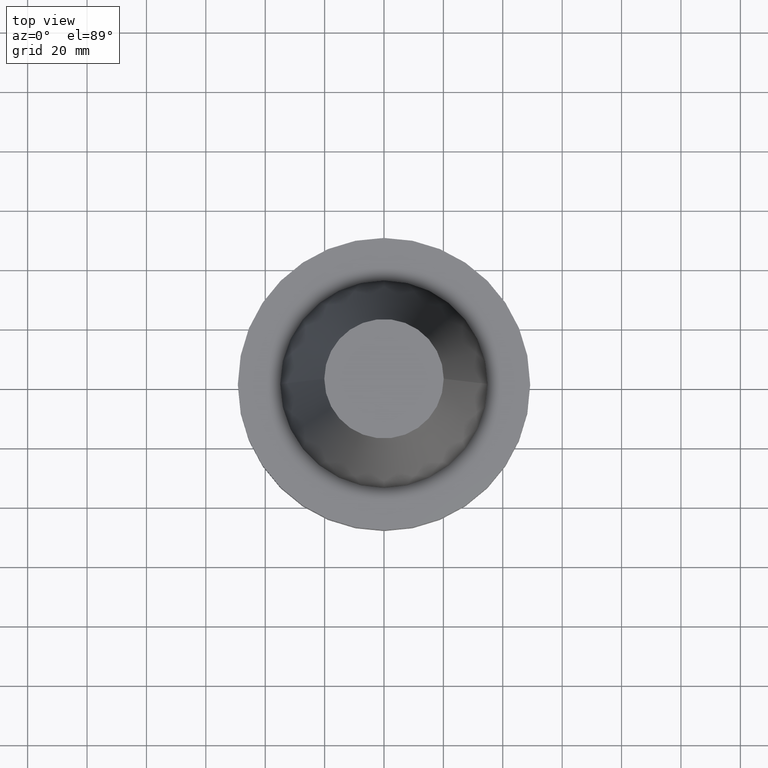
[diagram: clean part render]
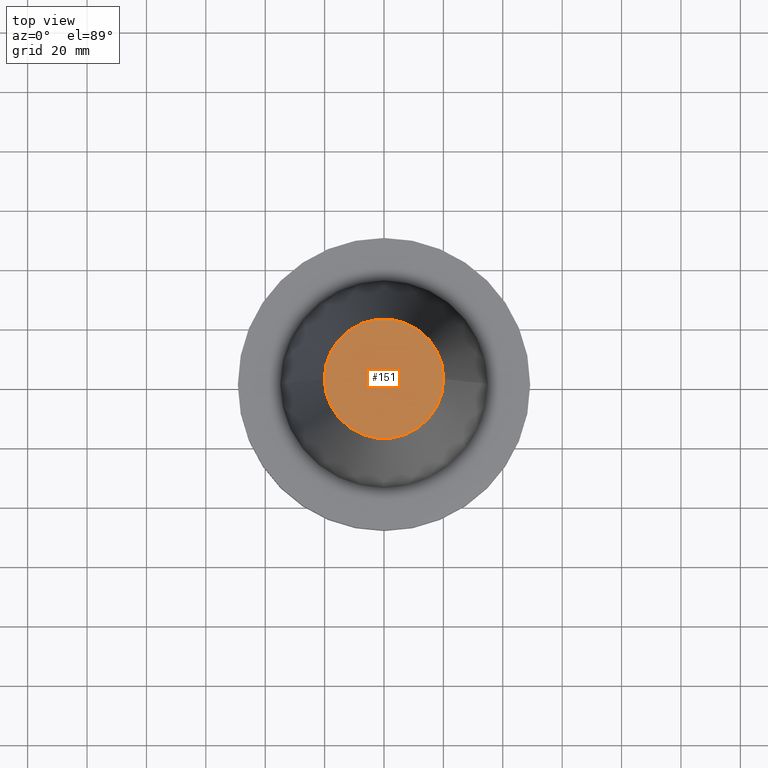
[diagram: same view with one face highlighted and labeled with its STEP entity id]
A machine part, top view. The second image highlights one B-rep face of the part: STEP entity #151.
In plain terms, the highlighted planar face has unit normal (0, 0, -1).
Its self-contained STEP definition (entity closure, byte-faithful):
#2 = VERTEX_POINT ( 'NONE', #121 ) ;
#9 = AXIS2_PLACEMENT_3D ( 'NONE', #426, #35, #78 ) ;
#35 = DIRECTION ( 'NONE',  ( -0.000000000000000000, -0.000000000000000000, 1.000000000000000000 ) ) ;
#78 = DIRECTION ( 'NONE',  ( 1.000000000000000000, 0.000000000000000000, 0.000000000000000000 ) ) ;
#87 = DIRECTION ( 'NONE',  ( 1.000000000000000000, 0.000000000000000000, 0.000000000000000000 ) ) ;
#110 = AXIS2_PLACEMENT_3D ( 'NONE', #402, #394, #211 ) ;
#121 = CARTESIAN_POINT ( 'NONE',  ( 20.10819343178871321, 3.369811209154858606E-15, 101.5999999999999801 ) ) ;
#149 = EDGE_LOOP ( 'NONE', ( #255, #808 ) ) ;
#151 = ADVANCED_FACE ( 'NONE', ( #200 ), #398, .F. ) ;
#153 = DIRECTION ( 'NONE',  ( -0.000000000000000000, -0.000000000000000000, 1.000000000000000000 ) ) ;
#200 = FACE_OUTER_BOUND ( 'NONE', #149, .T. ) ;
#211 = DIRECTION ( 'NONE',  ( -1.000000000000000000, 0.000000000000000000, -0.000000000000000000 ) ) ;
#255 = ORIENTED_EDGE ( 'NONE', *, *, #332, .T. ) ;
#274 = CIRCLE ( 'NONE', #9, 20.10819343178871321 ) ;
#297 = CARTESIAN_POINT ( 'NONE',  ( 0.000000000000000000, 0.000000000000000000, 101.5999999999999801 ) ) ;
#332 = EDGE_CURVE ( 'NONE', #450, #2, #730, .T. ) ;
#394 = DIRECTION ( 'NONE',  ( 0.000000000000000000, 0.000000000000000000, -1.000000000000000000 ) ) ;
#398 = PLANE ( 'NONE',  #110 ) ;
#402 = CARTESIAN_POINT ( 'NONE',  ( 0.000000000000000000, 20.10819343178871321, 101.5999999999999943 ) ) ;
#404 = EDGE_CURVE ( 'NONE', #2, #450, #274, .T. ) ;
#426 = CARTESIAN_POINT ( 'NONE',  ( 0.000000000000000000, 0.000000000000000000, 101.5999999999999801 ) ) ;
#450 = VERTEX_POINT ( 'NONE', #759 ) ;
#730 = CIRCLE ( 'NONE', #849, 20.10819343178871321 ) ;
#759 = CARTESIAN_POINT ( 'NONE',  ( -20.10819343178871321, 0.000000000000000000, 101.5999999999999801 ) ) ;
#808 = ORIENTED_EDGE ( 'NONE', *, *, #404, .T. ) ;
#849 = AXIS2_PLACEMENT_3D ( 'NONE', #297, #153, #87 ) ;